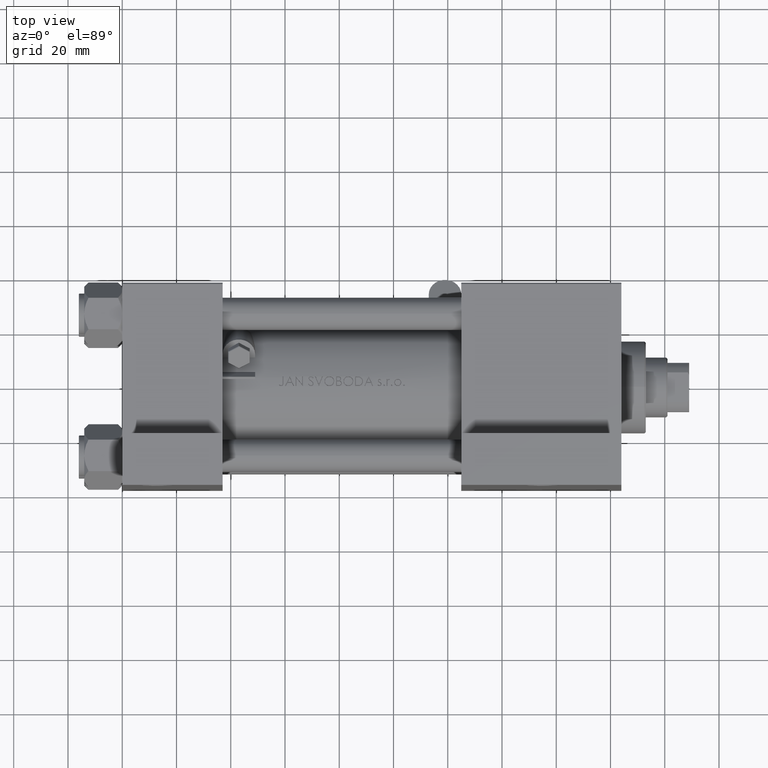
[diagram: clean part render]
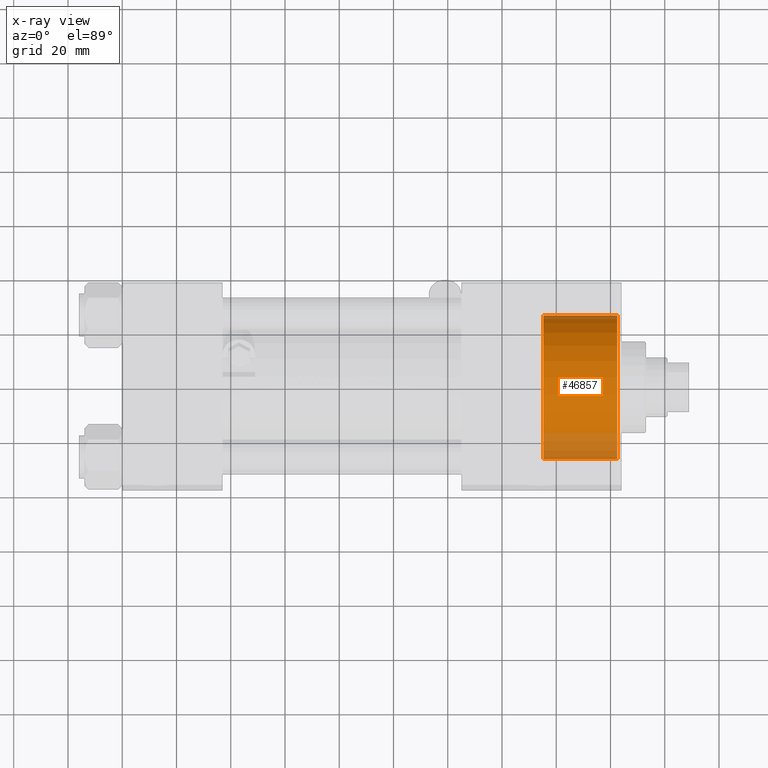
[diagram: x-ray — body ghosted, one internal face saturated and labeled with its STEP entity id]
A machine part, top view, then the same camera in x-ray: the body is ghosted and one INTERNAL B-rep face — a face not visible from any outside direction — is saturated and labeled: STEP entity #46857.
In plain terms, the highlighted cylindrical surface (partial cylindrical patch) has radius 26.5 mm, axis along (1, 0, 0).
Its self-contained STEP definition (entity closure, byte-faithful):
#1052 = CIRCLE ( 'NONE', #18306, 26.50000000000000355 ) ;
#1121 = EDGE_CURVE ( 'NONE', #46862, #6873, #27356, .T. ) ;
#4058 = ORIENTED_EDGE ( 'NONE', *, *, #35587, .T. ) ;
#6873 = VERTEX_POINT ( 'NONE', #41999 ) ;
#7345 = AXIS2_PLACEMENT_3D ( 'NONE', #28159, #46843, #32091 ) ;
#7617 = EDGE_CURVE ( 'NONE', #46862, #47858, #1052, .T. ) ;
#11505 = DIRECTION ( 'NONE',  ( 1.000000000000000000, 0.000000000000000000, 0.000000000000000000 ) ) ;
#12403 = ORIENTED_EDGE ( 'NONE', *, *, #7617, .F. ) ;
#15827 = FACE_OUTER_BOUND ( 'NONE', #47484, .T. ) ;
#16026 = CARTESIAN_POINT ( 'NONE',  ( 155.2999999999999829, 0.000000000000000000, -27.00000000000000355 ) ) ;
#18150 = DIRECTION ( 'NONE',  ( 0.000000000000000000, 0.000000000000000000, -1.000000000000000000 ) ) ;
#18306 = AXIS2_PLACEMENT_3D ( 'NONE', #29230, #11505, #18150 ) ;
#27356 = LINE ( 'NONE', #41872, #44025 ) ;
#27396 = CARTESIAN_POINT ( 'NONE',  ( 155.2999999999999829, 0.000000000000000000, -0.5000000000000004441 ) ) ;
#27635 = DIRECTION ( 'NONE',  ( 1.000000000000000000, -0.000000000000000000, -0.000000000000000000 ) ) ;
#27836 = DIRECTION ( 'NONE',  ( 1.000000000000000000, -0.000000000000000000, -0.000000000000000000 ) ) ;
#28159 = CARTESIAN_POINT ( 'NONE',  ( 182.5000000000000284, 0.000000000000000000, -0.5000000000000004441 ) ) ;
#29230 = CARTESIAN_POINT ( 'NONE',  ( 155.2999999999999829, 0.000000000000000000, -0.5000000000000004441 ) ) ;
#29575 = CARTESIAN_POINT ( 'NONE',  ( 182.5000000000000284, 0.000000000000000000, -27.00000000000000355 ) ) ;
#30794 = DIRECTION ( 'NONE',  ( 1.000000000000000000, -0.000000000000000000, -0.000000000000000000 ) ) ;
#31928 = VECTOR ( 'NONE', #30794, 1000.000000000000000 ) ;
#32091 = DIRECTION ( 'NONE',  ( 0.000000000000000000, 0.000000000000000000, 1.000000000000000000 ) ) ;
#35587 = EDGE_CURVE ( 'NONE', #6873, #36984, #35617, .T. ) ;
#35617 = CIRCLE ( 'NONE', #7345, 26.50000000000000355 ) ;
#36984 = VERTEX_POINT ( 'NONE', #29575 ) ;
#38703 = CARTESIAN_POINT ( 'NONE',  ( 155.2999999999999829, 3.245314017740486554E-15, 26.00000000000000355 ) ) ;
#38954 = CYLINDRICAL_SURFACE ( 'NONE', #39130, 26.50000000000000355 ) ;
#39130 = AXIS2_PLACEMENT_3D ( 'NONE', #27396, #27635, #45837 ) ;
#40670 = CARTESIAN_POINT ( 'NONE',  ( 155.2999999999999829, 0.000000000000000000, -27.00000000000000355 ) ) ;
#41635 = LINE ( 'NONE', #16026, #31928 ) ;
#41674 = EDGE_CURVE ( 'NONE', #47858, #36984, #41635, .T. ) ;
#41872 = CARTESIAN_POINT ( 'NONE',  ( 155.2999999999999829, 3.245314017740486554E-15, 26.00000000000000355 ) ) ;
#41999 = CARTESIAN_POINT ( 'NONE',  ( 182.5000000000000284, 3.245314017740486554E-15, 26.00000000000000355 ) ) ;
#43654 = ORIENTED_EDGE ( 'NONE', *, *, #41674, .F. ) ;
#44025 = VECTOR ( 'NONE', #27836, 1000.000000000000000 ) ;
#45621 = ORIENTED_EDGE ( 'NONE', *, *, #1121, .T. ) ;
#45837 = DIRECTION ( 'NONE',  ( 0.000000000000000000, 0.000000000000000000, -1.000000000000000000 ) ) ;
#46843 = DIRECTION ( 'NONE',  ( 1.000000000000000000, 0.000000000000000000, 0.000000000000000000 ) ) ;
#46857 = ADVANCED_FACE ( 'NONE', ( #15827 ), #38954, .F. ) ;
#46862 = VERTEX_POINT ( 'NONE', #38703 ) ;
#47484 = EDGE_LOOP ( 'NONE', ( #12403, #45621, #4058, #43654 ) ) ;
#47858 = VERTEX_POINT ( 'NONE', #40670 ) ;